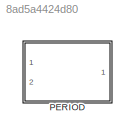
MODEL slx_8ad5a4424d80
KIND library
CONFIG AbsTol = auto
CONFIG EnableMultiTasking = off
CONFIG FixedStep = auto
CONFIG MaxStep = auto
CONFIG MinStep = auto
CONFIG RelTol = 1e-3
CONFIG SampleTimeConstraint = Unconstrained
CONFIG SolverName = VariableStepAuto
CONFIG StartTime = 0.0
CONFIG StopTime = 10.0
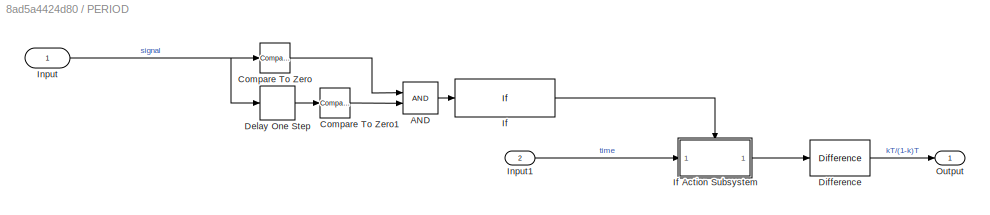
BLOCK [SubSystem] PERIOD
  Ports = [2, 1]
  RequestExecContextInheritance = off
BLOCK [Logic] PERIOD/AND
  AllPortsSameDT = off
  IconShape = distinctive
  OutDataTypeStr = boolean
  Ports = [2, 1]
BLOCK [Reference] PERIOD/Compare To Zero  REF=simulink/Logic and Bit
Operations/Compare
To Zero
  Ports = [1, 1]
  SourceBlock = simulink/Logic and Bit\nOperations/Compare\nTo Zero
  SourceProductBaseCode = SL
  SourceType = Compare To Zero
BLOCK [Reference] PERIOD/Compare To Zero1  REF=simulink/Logic and Bit
Operations/Compare
To Zero
  Ports = [1, 1]
  SourceBlock = simulink/Logic and Bit\nOperations/Compare\nTo Zero
  SourceProductBaseCode = SL
  SourceType = Compare To Zero
BLOCK [Delay] PERIOD/Delay One Step
  DelayLength = 1
  InputPortMap = u0
  Ports = [1, 1]
BLOCK [Reference] PERIOD/Difference  REF=simulink/Discrete/Difference
  Ports = [1, 1]
  SourceBlock = simulink/Discrete/Difference
  SourceProductBaseCode = SL
  SourceType = Difference
BLOCK [If] PERIOD/If
  IfExpression = u1 ~= 0
  Ports = [1, 1]
  ShowElse = off
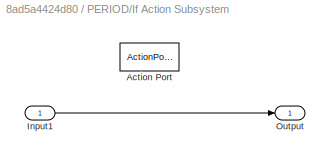
BLOCK [SubSystem] PERIOD/If Action Subsystem
  Ports = [1, 1, 0, 0, 0, 0, 0, 1]
  RequestExecContextInheritance = off
  TreatAsAtomicUnit = on
BLOCK [ActionPort] PERIOD/If Action Subsystem/Action Port
  ActionPortLabel = if(u1 > 0)
BLOCK [Inport] PERIOD/If Action Subsystem/Input1
BLOCK [Outport] PERIOD/If Action Subsystem/Output
BLOCK [Inport] PERIOD/Input
  IconDisplay = Signal name
BLOCK [Inport] PERIOD/Input1
  IconDisplay = Signal name
  Port = 2
BLOCK [Outport] PERIOD/Output
  IconDisplay = Signal name
LINE PERIOD/AND:1 -> PERIOD/If:1
LINE PERIOD/Compare To Zero1:1 -> PERIOD/AND:2
LINE PERIOD/Compare To Zero:1 -> PERIOD/AND:1
LINE PERIOD/Delay One Step:1 -> PERIOD/Compare To Zero1:1
LINE PERIOD/Difference:1 -> PERIOD/Output:1
LINE PERIOD/If Action Subsystem/Input1:1 -> PERIOD/If Action Subsystem/Output:1
LINE PERIOD/If Action Subsystem:1 -> PERIOD/Difference:1
LINE PERIOD/If:1 -> PERIOD/If Action Subsystem:ifaction
LINE PERIOD/Input1:1 -> PERIOD/If Action Subsystem:1
NET PERIOD/Input:1 -> PERIOD/Compare To Zero:1, PERIOD/Delay One Step:1
note: NET lines group one-source signal fan-out (src -> all destinations, sorted); 1:1 wires keep LINE
